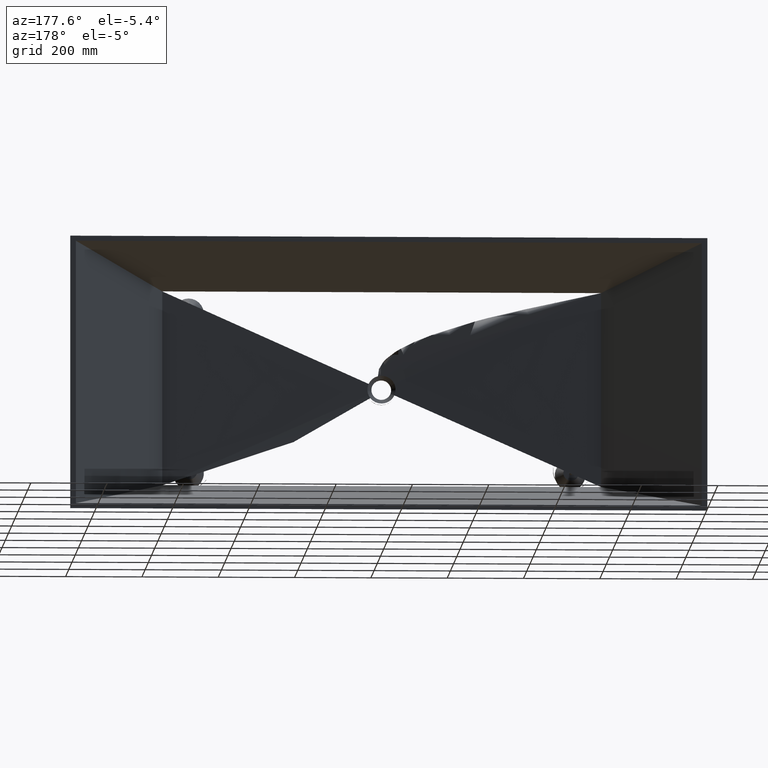
[diagram: clean part render]
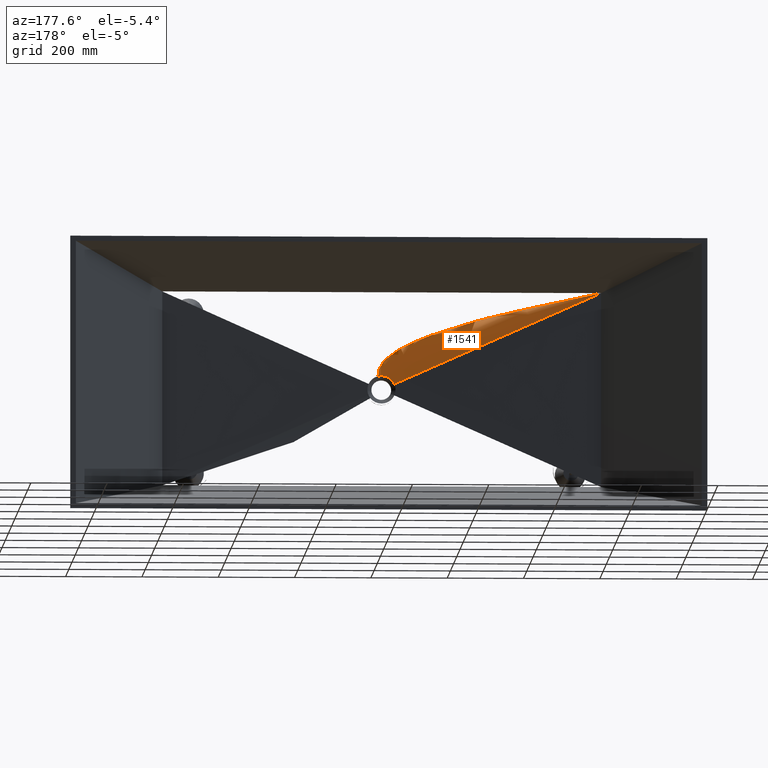
[diagram: same view with one face highlighted and labeled with its STEP entity id]
A machine part, auxiliary view. The second image highlights one B-rep face of the part: STEP entity #1541.
In plain terms, the highlighted face is a freeform B-spline surface patch.
Its self-contained STEP definition (entity closure, byte-faithful):
#70 = VERTEX_POINT ( 'NONE', #1784 ) ;
#435 = EDGE_CURVE ( 'NONE', #4098, #5544, #1333, .T. ) ;
#595 = CARTESIAN_POINT ( 'NONE',  ( 520.6161923987405100, -454.0000000000000000, -212.2297896724848000 ) ) ;
#1333 = LINE ( 'NONE', #595, #1420 ) ;
#1420 = VECTOR ( 'NONE', #2545, 1000.000000000000100 ) ;
#1511 = CARTESIAN_POINT ( 'NONE',  ( 853.7338744359163900, -459.7831348520657000, -330.0562343305999200 ) ) ;
#1526 = CARTESIAN_POINT ( 'NONE',  ( 786.2761816469558200, -459.7831004726664300, -330.0331420883940700 ) ) ;
#1541 = ADVANCED_FACE ( 'NONE', ( #4259 ), #2803, .F. ) ;
#1784 = CARTESIAN_POINT ( 'NONE',  ( 1395.000000000000000, -448.0000000000000000, -89.99999999999974400 ) ) ;
#1928 = CARTESIAN_POINT ( 'NONE',  ( 796.0396765957873400, -460.0000000000000000, -334.8941174468276400 ) ) ;
#1955 = CARTESIAN_POINT ( 'NONE',  ( 233.5000000000000300, -448.0000000000000000, -89.99999999999974400 ) ) ;
#1982 = CARTESIAN_POINT ( 'NONE',  ( 205.3102072313369900, -447.3986601704771100, -77.72795109694750700 ) ) ;
#2012 = CARTESIAN_POINT ( 'NONE',  ( 796.1039126630184900, -460.0000000000000000, -334.7492714128750300 ) ) ;
#2043 = CARTESIAN_POINT ( 'NONE',  ( 237.3333333333334000, -448.0000000000000000, -89.99999999999974400 ) ) ;
#2072 = CARTESIAN_POINT ( 'NONE',  ( 209.3324162569581100, -447.3986601704771100, -77.73520957106119100 ) ) ;
#2102 = CARTESIAN_POINT ( 'NONE',  ( 796.1681487302496400, -460.0000000000000000, -334.6044253789224300 ) ) ;
#2140 = CARTESIAN_POINT ( 'NONE',  ( 241.1666666666667400, -448.0000000000000000, -89.99999999999974400 ) ) ;
#2173 = CARTESIAN_POINT ( 'NONE',  ( 213.3546252825792400, -447.3986601704771100, -77.74246804517486000 ) ) ;
#2199 = CARTESIAN_POINT ( 'NONE',  ( 796.2323847974807900, -460.0000000000000000, -334.4595793449698200 ) ) ;
#2223 = CARTESIAN_POINT ( 'NONE',  ( 245.0000000000001100, -448.0000000000000000, -89.99999999999974400 ) ) ;
#2446 = LINE ( 'NONE', #2710, #5601 ) ;
#2478 = CARTESIAN_POINT ( 'NONE',  ( 217.3768343082003600, -447.3986601704771100, -77.74972651928852900 ) ) ;
#2500 = CARTESIAN_POINT ( 'NONE',  ( 796.6338602176755300, -460.0000000000001100, -333.5542916327663100 ) ) ;
#2524 = CARTESIAN_POINT ( 'NONE',  ( 268.9583333333336000, -448.0000000000000600, -89.99999999999974400 ) ) ;
#2545 = DIRECTION ( 'NONE',  ( 0.9139580911381101100, -0.01989632212499038700, -0.4053205447655973700 ) ) ;
#2547 = CARTESIAN_POINT ( 'NONE',  ( 242.5156407183322400, -447.3986601704771700, -77.79509198249900200 ) ) ;
#2574 = CARTESIAN_POINT ( 'NONE',  ( 797.1021018472764600, -459.9999999999999400, -332.6379855863201600 ) ) ;
#2601 = CARTESIAN_POINT ( 'NONE',  ( 292.9166666666670300, -448.0000000000000600, -89.99999999999974400 ) ) ;
#2623 = CARTESIAN_POINT ( 'NONE',  ( 267.6511013633822800, -447.3986601704771700, -77.84100959264573300 ) ) ;
#2648 = CARTESIAN_POINT ( 'NONE',  ( 798.1892941554418700, -460.0000000000000600, -330.8075283780914900 ) ) ;
#2681 = B_SPLINE_CURVE_WITH_KNOTS ( 'NONE', 3,
 ( #5897, #6356, #5586, #5551, #5539, #5523, #5514, #5497, #5485, #5460, #5427, #5399, #5369, #5341, #5311, #5282, #5252, #5222, #5200, #5179, #5134, #5081, #5001, #4941 ),
 .UNSPECIFIED., .F., .F.,
 ( 4, 2, 2, 2, 2, 2, 2, 2, 2, 2, 2, 4 ),
 ( 0.0000000000000000000, 0.08655121648617626600, 0.2242693519188556100, 0.3619874873515349100, 0.4997056227842142700, 0.6374237582168935700, 0.7062828259332332200, 0.7751418936495729800, 0.8440009613659126300, 0.9128600290822522800, 0.9817190967985916000, 0.9998218624511184800 ),
 .UNSPECIFIED. ) ;
#2684 = CARTESIAN_POINT ( 'NONE',  ( 340.8333333333340000, -448.0000000000000600, -89.99999999999974400 ) ) ;
#2709 = CARTESIAN_POINT ( 'NONE',  ( 317.9144703739981400, -447.3986601704771700, -77.93273682810782100 ) ) ;
#2710 = CARTESIAN_POINT ( 'NONE',  ( 1395.000000000000000, -448.0000000000000000, -89.99999999999974400 ) ) ;
#2720 = DIRECTION ( 'NONE',  ( 1.000000000000000000, -0.0000000000000000000, -0.0000000000000000000 ) ) ;
#2729 = CARTESIAN_POINT ( 'NONE',  ( 798.8083503438806500, -459.9999999999999400, -329.8933820346869700 ) ) ;
#2737 = DIRECTION ( 'NONE',  ( -0.9139580911381102200, -0.01989632212499038400, -0.4053205447655970900 ) ) ;
#2753 = CARTESIAN_POINT ( 'NONE',  ( 364.7916666666674200, -448.0000000000000600, -89.99999999999974400 ) ) ;
#2778 = CARTESIAN_POINT ( 'NONE',  ( 1119.383807601259600, -454.0000000000000000, -212.2297896724847700 ) ) ;
#2780 = CARTESIAN_POINT ( 'NONE',  ( 343.0423734522896700, -447.3986601704771700, -77.97854621196630400 ) ) ;
#2803 = B_SPLINE_SURFACE_WITH_KNOTS ( 'NONE', 3, 1, ( 
 ( #7175, #7128, #7098 ),
 ( #7073, #7053, #7025 ),
 ( #6747, #6720, #6699 ),
 ( #6678, #6647, #6628 ),
 ( #6602, #6574, #6546 ),
 ( #6523, #6495, #6468 ),
 ( #6446, #6167, #6143 ),
 ( #6115, #6095, #6069 ),
 ( #6015, #5992, #5965 ),
 ( #5941, #5917, #5894 ),
 ( #5870, #5571, #5536 ),
 ( #5508, #5481, #5455 ),
 ( #5421, #5395, #5366 ),
 ( #5336, #5307, #5278 ),
 ( #5248, #5218, #4958 ),
 ( #4922, #4893, #4865 ),
 ( #4830, #4807, #4776 ),
 ( #4748, #4718, #4691 ),
 ( #4668, #4647, #4629 ),
 ( #4607, #4389, #4362 ),
 ( #4339, #4312, #4294 ),
 ( #4273, #4245, #4225 ),
 ( #4207, #4185, #4163 ),
 ( #4144, #4121, #3866 ),
 ( #3835, #3816, #3791 ),
 ( #3762, #3733, #3706 ),
 ( #3684, #3653, #3627 ),
 ( #3607, #3583, #3556 ),
 ( #3326, #3301, #3277 ),
 ( #3244, #3224, #3201 ),
 ( #3175, #3148, #3126 ),
 ( #3102, #3076, #3058 ),
 ( #2780, #2753, #2729 ),
 ( #2709, #2684, #2648 ),
 ( #2623, #2601, #2574 ),
 ( #2547, #2524, #2500 ),
 ( #2478, #2223, #2199 ),
 ( #2173, #2140, #2102 ),
 ( #2072, #2043, #2012 ),
 ( #1982, #1955, #1928 ) ),
 .UNSPECIFIED., .F., .F., .F.,
 ( 4, 3, 2, 2, 2, 2, 2, 2, 2, 2, 2, 2, 2, 2, 2, 2, 2, 3, 4 ),
 ( 2, 1, 2 ),
 ( -0.01000000000000000000, 0.0000000000000000000, 0.06250000000000000000, 0.1250000000000000000, 0.1875000000000000000, 0.2500000000000000000, 0.3125000000000000000, 0.3750000000000000000, 0.4375000000000000000, 0.5000000000000000000, 0.5625000000000000000, 0.6250000000000000000, 0.6875000000000000000, 0.7500000000000000000, 0.8125000000000000000, 0.8750000000000000000, 0.9375000000000000000, 1.000000000000000000, 1.010000000000000000 ),
 ( -0.05011165246023840900, 0.0000000000000000000, 1.000000000000000000 ),
 .UNSPECIFIED. ) ;
#3058 = CARTESIAN_POINT ( 'NONE',  ( 800.2097724308378000, -460.0000000000000600, -328.0990291918365100 ) ) ;
#3076 = CARTESIAN_POINT ( 'NONE',  ( 412.7083333333342200, -448.0000000000000600, -89.99999999999974400 ) ) ;
#3102 = CARTESIAN_POINT ( 'NONE',  ( 393.2899958894379300, -447.3986601704771700, -78.06846419801826200 ) ) ;
#3126 = CARTESIAN_POINT ( 'NONE',  ( 800.9922557483330400, -459.9999999999999400, -327.2188760848184200 ) ) ;
#3130 = VECTOR ( 'NONE', #2737, 1000.000000000000000 ) ;
#3148 = CARTESIAN_POINT ( 'NONE',  ( 436.6666666666676000, -448.0000000000000600, -89.99999999999974400 ) ) ;
#3175 = CARTESIAN_POINT ( 'NONE',  ( 418.4097093642355400, -447.3986601704771700, -78.11257012462894500 ) ) ;
#3201 = CARTESIAN_POINT ( 'NONE',  ( 802.7249893750521300, -460.0000000000000600, -325.5311346727203800 ) ) ;
#3224 = CARTESIAN_POINT ( 'NONE',  ( 484.5833333333343400, -448.0000000000000600, -89.99999999999974400 ) ) ;
#3244 = CARTESIAN_POINT ( 'NONE',  ( 468.6407292326471200, -447.3986601704771700, -78.19714563571474700 ) ) ;
#3277 = CARTESIAN_POINT ( 'NONE',  ( 803.6753435962760900, -459.9999999999999400, -324.7236606158881500 ) ) ;
#3301 = CARTESIAN_POINT ( 'NONE',  ( 508.5416666666677700, -448.0000000000000600, -89.99999999999974400 ) ) ;
#3326 = CARTESIAN_POINT ( 'NONE',  ( 493.7520304190589400, -447.3986601704771700, -78.23760949502140200 ) ) ;
#3411 = EDGE_CURVE ( 'NONE', #5544, #5547, #2681, .T. ) ;
#3556 = CARTESIAN_POINT ( 'NONE',  ( 805.7367009452904100, -460.0000000000000600, -323.2242647519024100 ) ) ;
#3583 = CARTESIAN_POINT ( 'NONE',  ( 556.4583333333346200, -448.0000000000000600, -89.99999999999974400 ) ) ;
#3607 = CARTESIAN_POINT ( 'NONE',  ( 543.9665824097087400, -447.3986601704771700, -78.31274669945777600 ) ) ;
#3627 = CARTESIAN_POINT ( 'NONE',  ( 806.8477589170000800, -459.9999999999999400, -322.5325148612296300 ) ) ;
#3653 = CARTESIAN_POINT ( 'NONE',  ( 580.4166666666679900, -448.0000000000000600, -89.99999999999974400 ) ) ;
#3684 = CARTESIAN_POINT ( 'NONE',  ( 569.0698304656272100, -447.3986601704771700, -78.34741142956856700 ) ) ;
#3706 = CARTESIAN_POINT ( 'NONE',  ( 809.2093046495850800, -460.0000000000000600, -321.3075913461557300 ) ) ;
#3733 = CARTESIAN_POINT ( 'NONE',  ( 628.3333333333347400, -448.0000000000000000, -89.99999999999974400 ) ) ;
#3762 = CARTESIAN_POINT ( 'NONE',  ( 619.2693395203267500, -447.3986601704771100, -78.40879437104634100 ) ) ;
#3791 = CARTESIAN_POINT ( 'NONE',  ( 810.4597636140840700, -459.9999999999999400, -320.7746205460517800 ) ) ;
#3816 = CARTESIAN_POINT ( 'NONE',  ( 652.2916666666679900, -448.0000000000000000, -89.99999999999974400 ) ) ;
#3835 = CARTESIAN_POINT ( 'NONE',  ( 644.3656019621419100, -447.3986601704771100, -78.43550241855260200 ) ) ;
#3866 = CARTESIAN_POINT ( 'NONE',  ( 813.0642757729978000, -460.0000000000001100, -319.9045651674670700 ) ) ;
#4098 = VERTEX_POINT ( 'NONE', #7383 ) ;
#4121 = CARTESIAN_POINT ( 'NONE',  ( 700.2083333333347400, -448.0000000000000000, -89.99999999999974400 ) ) ;
#4144 = CARTESIAN_POINT ( 'NONE',  ( 694.5529355677256300, -447.3986601704771100, -78.47910233130539800 ) ) ;
#4163 = CARTESIAN_POINT ( 'NONE',  ( 814.4182004843567000, -459.9999999999999400, -319.5676653441671500 ) ) ;
#4185 = CARTESIAN_POINT ( 'NONE',  ( 724.1666666666681100, -447.9999999999999400, -89.99999999999974400 ) ) ;
#4207 = CARTESIAN_POINT ( 'NONE',  ( 719.6440131699926000, -447.3986601704770600, -78.49598493816451100 ) ) ;
#4225 = CARTESIAN_POINT ( 'NONE',  ( 817.1815169223073100, -460.0000000000000600, -319.1153272182190200 ) ) ;
#4245 = CARTESIAN_POINT ( 'NONE',  ( 772.0833333333346200, -447.9999999999999400, -89.99999999999974400 ) ) ;
#4259 = FACE_OUTER_BOUND ( 'NONE', #4916, .T. ) ;
#4273 = CARTESIAN_POINT ( 'NONE',  ( 769.8233888307361200, -447.3986601704770600, -78.51865234912654000 ) ) ;
#4294 = CARTESIAN_POINT ( 'NONE',  ( 818.5906976799302600, -459.9999999999999400, -318.9999999999999400 ) ) ;
#4312 = CARTESIAN_POINT ( 'NONE',  ( 796.0416666666681100, -447.9999999999999400, -89.99999999999974400 ) ) ;
#4339 = CARTESIAN_POINT ( 'NONE',  ( 794.9116974612163600, -447.3986601704770600, -78.52443158660514700 ) ) ;
#4362 = CARTESIAN_POINT ( 'NONE',  ( 821.4093023200698600, -460.0000000000001100, -319.0000000000000000 ) ) ;
#4389 = CARTESIAN_POINT ( 'NONE',  ( 843.9583333333347400, -447.9999999999999400, -89.99999999999975800 ) ) ;
#4607 = CARTESIAN_POINT ( 'NONE',  ( 845.0883025387864800, -447.3986601704770600, -78.52443158660516100 ) ) ;
#4629 = CARTESIAN_POINT ( 'NONE',  ( 822.8184830776926900, -460.0000000000001100, -319.1153272182190200 ) ) ;
#4647 = CARTESIAN_POINT ( 'NONE',  ( 867.9166666666679900, -447.9999999999999400, -89.99999999999974400 ) ) ;
#4668 = CARTESIAN_POINT ( 'NONE',  ( 870.1766111692668300, -447.3986601704770600, -78.51865234912654000 ) ) ;
#4691 = CARTESIAN_POINT ( 'NONE',  ( 825.5817995156431800, -460.0000000000000600, -319.5676653441672100 ) ) ;
#4718 = CARTESIAN_POINT ( 'NONE',  ( 915.8333333333348500, -448.0000000000000600, -89.99999999999974400 ) ) ;
#4748 = CARTESIAN_POINT ( 'NONE',  ( 920.3559868300103500, -447.3986601704771700, -78.49598493816451100 ) ) ;
#4776 = CARTESIAN_POINT ( 'NONE',  ( 826.9357242270024200, -460.0000000000001100, -319.9045651674669600 ) ) ;
#4807 = CARTESIAN_POINT ( 'NONE',  ( 939.7916666666681100, -448.0000000000000600, -89.99999999999975800 ) ) ;
#4830 = CARTESIAN_POINT ( 'NONE',  ( 945.4470644322773300, -447.3986601704771700, -78.47910233130541300 ) ) ;
#4865 = CARTESIAN_POINT ( 'NONE',  ( 829.5402363859162700, -460.0000000000001100, -320.7746205460518400 ) ) ;
#4893 = CARTESIAN_POINT ( 'NONE',  ( 987.7083333333347400, -448.0000000000000600, -89.99999999999975800 ) ) ;
#4916 = EDGE_LOOP ( 'NONE', ( #6129, #5641, #5835, #6558 ) ) ;
#4922 = CARTESIAN_POINT ( 'NONE',  ( 995.6343980378610500, -447.3986601704771700, -78.43550241855260200 ) ) ;
#4941 = CARTESIAN_POINT ( 'NONE',  ( 853.7338744359163900, -459.7831348520657000, -330.0562343305999200 ) ) ;
#4958 = CARTESIAN_POINT ( 'NONE',  ( 830.7906953504152600, -460.0000000000001100, -321.3075913461557900 ) ) ;
#5001 = CARTESIAN_POINT ( 'NONE',  ( 853.5235802897099100, -459.7798139022299300, -329.5914400248173000 ) ) ;
#5081 = CARTESIAN_POINT ( 'NONE',  ( 853.3039823060536300, -459.7762995391000800, -329.1315837846231000 ) ) ;
#5134 = CARTESIAN_POINT ( 'NONE',  ( 852.2053123938135300, -459.7591575171466600, -326.9491339332593600 ) ) ;
#5179 = CARTESIAN_POINT ( 'NONE',  ( 851.1785209893175800, -459.7434923425656200, -325.2607734435818000 ) ) ;
#5200 = CARTESIAN_POINT ( 'NONE',  ( 848.8977921422837200, -459.7097688032836200, -322.1142265172769000 ) ) ;
#5218 = CARTESIAN_POINT ( 'NONE',  ( 1011.666666666668000, -448.0000000000000600, -89.99999999999974400 ) ) ;
#5222 = CARTESIAN_POINT ( 'NONE',  ( 847.6422470237447400, -459.6914987369371500, -320.6446105722367300 ) ) ;
#5248 = CARTESIAN_POINT ( 'NONE',  ( 1020.730660479676200, -447.3986601704771700, -78.40879437104632600 ) ) ;
#5252 = CARTESIAN_POINT ( 'NONE',  ( 844.9123831077773700, -459.6526312391474700, -317.9157885359783800 ) ) ;
#5278 = CARTESIAN_POINT ( 'NONE',  ( 833.1522410830000400, -460.0000000000000600, -322.5325148612296300 ) ) ;
#5282 = CARTESIAN_POINT ( 'NONE',  ( 843.4200622628916300, -459.6317816269588500, -316.6433857555014100 ) ) ;
#5307 = CARTESIAN_POINT ( 'NONE',  ( 1059.583333333334400, -448.0000000000000600, -89.99999999999974400 ) ) ;
#5311 = CARTESIAN_POINT ( 'NONE',  ( 840.2609534101036400, -459.5898768446111800, -314.3590260586547100 ) ) ;
#5336 = CARTESIAN_POINT ( 'NONE',  ( 1070.930169534375400, -447.3986601704771700, -78.34741142956856700 ) ) ;
#5341 = CARTESIAN_POINT ( 'NONE',  ( 838.6119351044598000, -459.5690814824217800, -313.3551291688219700 ) ) ;
#5366 = CARTESIAN_POINT ( 'NONE',  ( 834.2632990547097100, -460.0000000000000000, -323.2242647519024100 ) ) ;
#5369 = CARTESIAN_POINT ( 'NONE',  ( 835.1648534938102600, -459.5299680696582500, -311.6066330733732500 ) ) ;
#5395 = CARTESIAN_POINT ( 'NONE',  ( 1083.541666666667700, -448.0000000000000600, -89.99999999999974400 ) ) ;
#5399 = CARTESIAN_POINT ( 'NONE',  ( 833.3620354769542500, -459.5116841034201200, -310.8615045998862500 ) ) ;
#5421 = CARTESIAN_POINT ( 'NONE',  ( 1096.033417590293800, -447.3986601704771700, -78.31274669945777600 ) ) ;
#5427 = CARTESIAN_POINT ( 'NONE',  ( 827.7585575533848900, -459.4650499516653200, -309.0503944718584500 ) ) ;
#5455 = CARTESIAN_POINT ( 'NONE',  ( 836.3246564037236800, -460.0000000000000600, -324.7236606158881500 ) ) ;
#5460 = CARTESIAN_POINT ( 'NONE',  ( 823.9405791228254000, -459.4470400777069000, -308.4481825654661400 ) ) ;
#5481 = CARTESIAN_POINT ( 'NONE',  ( 1131.458333333334400, -448.0000000000000600, -89.99999999999974400 ) ) ;
#5485 = CARTESIAN_POINT ( 'NONE',  ( 816.0767941080627000, -459.4469691962485700, -308.4458286689959400 ) ) ;
#5497 = CARTESIAN_POINT ( 'NONE',  ( 812.2192466002984500, -459.4651716975275200, -309.0552313348030700 ) ) ;
#5508 = CARTESIAN_POINT ( 'NONE',  ( 1146.247969580943400, -447.3986601704771700, -78.23760949502140200 ) ) ;
#5514 = CARTESIAN_POINT ( 'NONE',  ( 804.7551863626283600, -459.5274159953430600, -311.4723876951289900 ) ) ;
#5523 = CARTESIAN_POINT ( 'NONE',  ( 801.3165646052330000, -459.5688895387608600, -313.2155672034200500 ) ) ;
#5536 = CARTESIAN_POINT ( 'NONE',  ( 837.2750106249483200, -460.0000000000000000, -325.5311346727202700 ) ) ;
#5539 = CARTESIAN_POINT ( 'NONE',  ( 794.9742194339189600, -459.6531430245014500, -317.8072518171251200 ) ) ;
#5544 = VERTEX_POINT ( 'NONE', #1526 ) ;
#5547 = VERTEX_POINT ( 'NONE', #1511 ) ;
#5551 = CARTESIAN_POINT ( 'NONE',  ( 792.2506737593204200, -459.6923484133209900, -320.5257662229465200 ) ) ;
#5571 = CARTESIAN_POINT ( 'NONE',  ( 1155.416666666667700, -448.0000000000000600, -89.99999999999974400 ) ) ;
#5586 = CARTESIAN_POINT ( 'NONE',  ( 788.5109875339659300, -459.7483591893181400, -325.6916698539041600 ) ) ;
#5601 = VECTOR ( 'NONE', #2720, 1000.000000000000000 ) ;
#5641 = ORIENTED_EDGE ( 'NONE', *, *, #7151, .T. ) ;
#5835 = ORIENTED_EDGE ( 'NONE', *, *, #7036, .T. ) ;
#5870 = CARTESIAN_POINT ( 'NONE',  ( 1171.359270767354900, -447.3986601704771700, -78.19714563571476200 ) ) ;
#5894 = CARTESIAN_POINT ( 'NONE',  ( 839.0077442516670800, -460.0000000000000600, -327.2188760848185300 ) ) ;
#5897 = CARTESIAN_POINT ( 'NONE',  ( 786.2761816469558200, -459.7831004726664300, -330.0331420883940700 ) ) ;
#5917 = CARTESIAN_POINT ( 'NONE',  ( 1203.333333333333900, -448.0000000000000600, -89.99999999999974400 ) ) ;
#5941 = CARTESIAN_POINT ( 'NONE',  ( 1221.590290635766000, -447.3986601704771700, -78.11257012462894500 ) ) ;
#5965 = CARTESIAN_POINT ( 'NONE',  ( 839.7902275691624300, -460.0000000000000000, -328.0990291918365600 ) ) ;
#5992 = CARTESIAN_POINT ( 'NONE',  ( 1227.291666666667400, -448.0000000000000600, -89.99999999999974400 ) ) ;
#6015 = CARTESIAN_POINT ( 'NONE',  ( 1246.710004110563700, -447.3986601704771700, -78.06846419801826200 ) ) ;
#6069 = CARTESIAN_POINT ( 'NONE',  ( 841.1916496561193500, -460.0000000000000600, -329.8933820346870200 ) ) ;
#6095 = CARTESIAN_POINT ( 'NONE',  ( 1275.208333333333700, -448.0000000000000600, -89.99999999999974400 ) ) ;
#6115 = CARTESIAN_POINT ( 'NONE',  ( 1296.957626547711500, -447.3986601704771700, -77.97854621196630400 ) ) ;
#6129 = ORIENTED_EDGE ( 'NONE', *, *, #435, .F. ) ;
#6143 = CARTESIAN_POINT ( 'NONE',  ( 841.8107058445580200, -459.9999999999999400, -330.8075283780913800 ) ) ;
#6167 = CARTESIAN_POINT ( 'NONE',  ( 1299.166666666666700, -448.0000000000000000, -89.99999999999974400 ) ) ;
#6356 = CARTESIAN_POINT ( 'NONE',  ( 787.2862329749491400, -459.7657944659698600, -327.8018166026341800 ) ) ;
#6446 = CARTESIAN_POINT ( 'NONE',  ( 1322.085529626002900, -447.3986601704771100, -77.93273682810782100 ) ) ;
#6468 = CARTESIAN_POINT ( 'NONE',  ( 842.8978981527234300, -460.0000000000000600, -332.6379855863201600 ) ) ;
#6495 = CARTESIAN_POINT ( 'NONE',  ( 1347.083333333333500, -448.0000000000000000, -89.99999999999974400 ) ) ;
#6523 = CARTESIAN_POINT ( 'NONE',  ( 1372.348898636618100, -447.3986601704771100, -77.84100959264573300 ) ) ;
#6546 = CARTESIAN_POINT ( 'NONE',  ( 843.3661397823241300, -459.9999999999999400, -333.5542916327662500 ) ) ;
#6558 = ORIENTED_EDGE ( 'NONE', *, *, #3411, .F. ) ;
#6574 = CARTESIAN_POINT ( 'NONE',  ( 1371.041666666666700, -448.0000000000000000, -89.99999999999974400 ) ) ;
#6602 = CARTESIAN_POINT ( 'NONE',  ( 1397.484359281668000, -447.3986601704771100, -77.79509198249900200 ) ) ;
#6628 = CARTESIAN_POINT ( 'NONE',  ( 843.7676152025191000, -460.0000000000000000, -334.4595793449697700 ) ) ;
#6647 = CARTESIAN_POINT ( 'NONE',  ( 1395.000000000000000, -448.0000000000000000, -89.99999999999974400 ) ) ;
#6678 = CARTESIAN_POINT ( 'NONE',  ( 1422.623165691799800, -447.3986601704771100, -77.74972651928852900 ) ) ;
#6699 = CARTESIAN_POINT ( 'NONE',  ( 843.8318512697502500, -460.0000000000000000, -334.6044253789223700 ) ) ;
#6720 = CARTESIAN_POINT ( 'NONE',  ( 1398.833333333333500, -448.0000000000000000, -89.99999999999974400 ) ) ;
#6747 = CARTESIAN_POINT ( 'NONE',  ( 1426.645374717420700, -447.3986601704771100, -77.74246804517486000 ) ) ;
#7025 = CARTESIAN_POINT ( 'NONE',  ( 843.8960873369814000, -460.0000000000000000, -334.7492714128749800 ) ) ;
#7036 = EDGE_CURVE ( 'NONE', #70, #5547, #7333, .T. ) ;
#7053 = CARTESIAN_POINT ( 'NONE',  ( 1402.666666666666700, -448.0000000000000000, -89.99999999999974400 ) ) ;
#7073 = CARTESIAN_POINT ( 'NONE',  ( 1430.667583743041900, -447.3986601704771100, -77.73520957106119100 ) ) ;
#7098 = CARTESIAN_POINT ( 'NONE',  ( 843.9603234042125500, -460.0000000000000000, -334.8941174468275800 ) ) ;
#7128 = CARTESIAN_POINT ( 'NONE',  ( 1406.500000000000000, -448.0000000000000000, -89.99999999999974400 ) ) ;
#7151 = EDGE_CURVE ( 'NONE', #4098, #70, #2446, .T. ) ;
#7175 = CARTESIAN_POINT ( 'NONE',  ( 1434.689792768662800, -447.3986601704771100, -77.72795109694750700 ) ) ;
#7333 = LINE ( 'NONE', #2778, #3130 ) ;
#7383 = CARTESIAN_POINT ( 'NONE',  ( 245.0000000000001100, -448.0000000000000000, -89.99999999999974400 ) ) ;